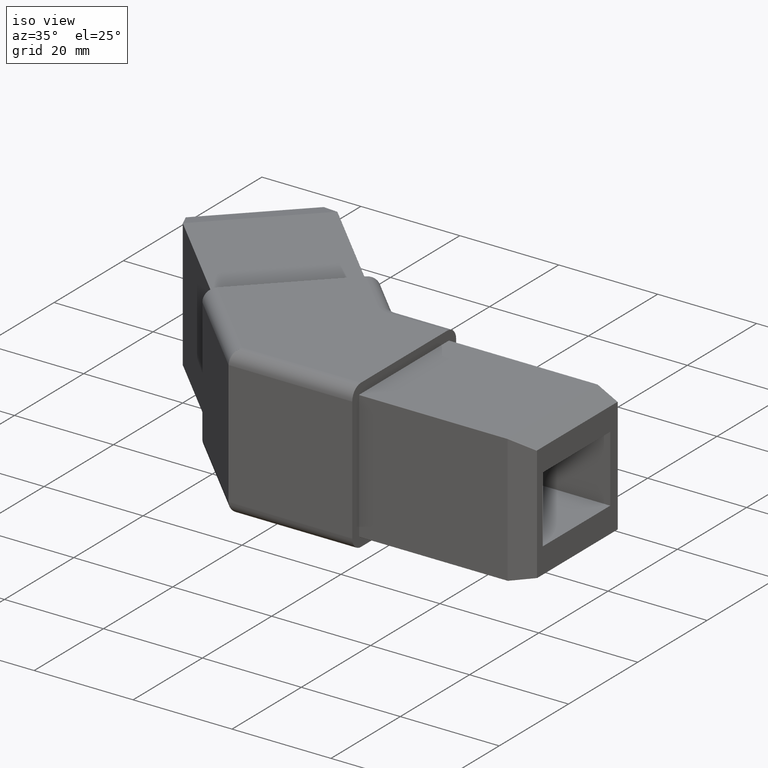
[diagram: clean part render]
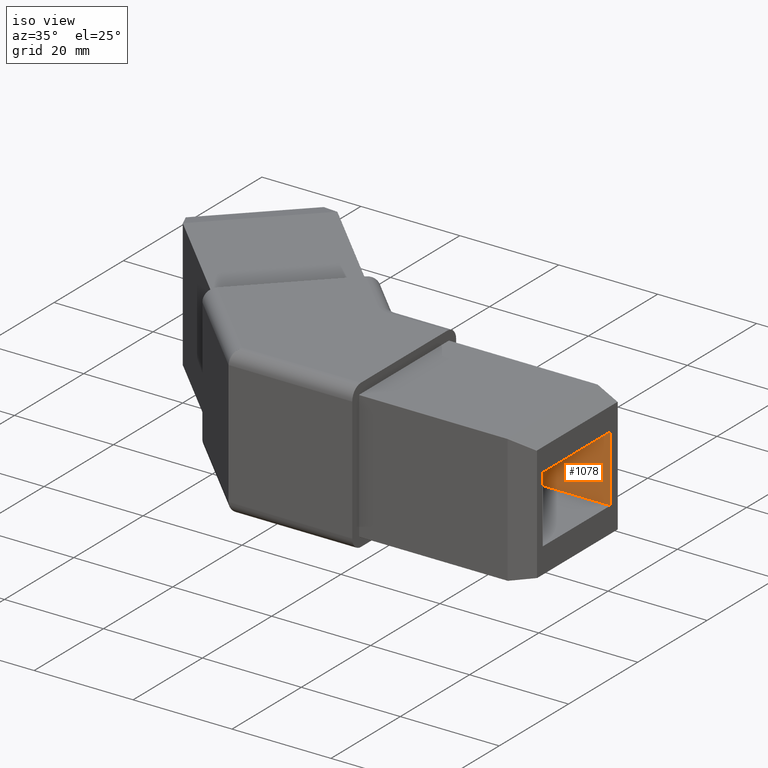
[diagram: same view with one face highlighted and labeled with its STEP entity id]
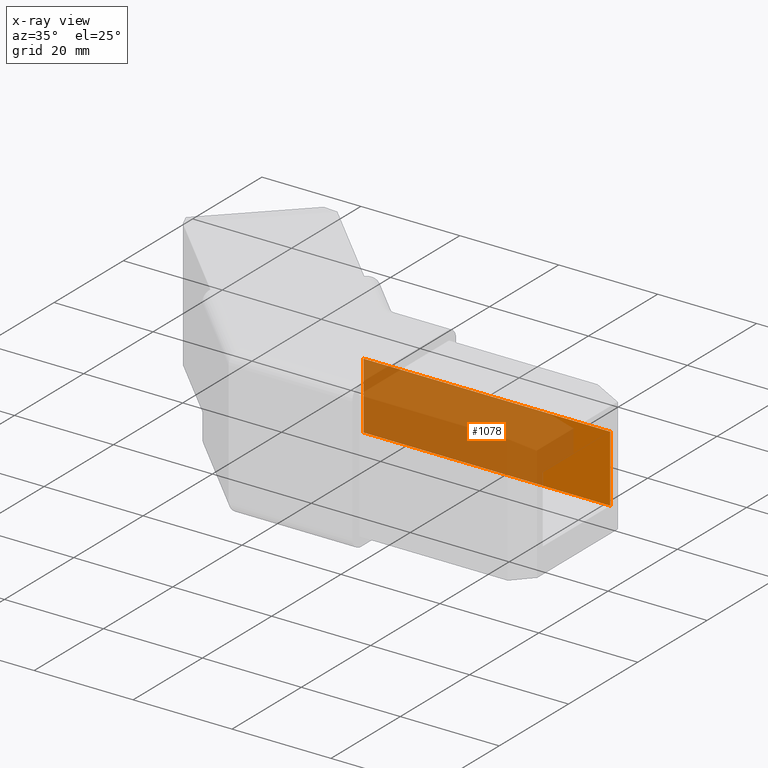
[diagram: x-ray of the same camera — body ghosted, the highlighted face saturated]
A machine part, iso view. The second image highlights one B-rep face of the part: STEP entity #1078.
The next image is the same camera in x-ray: the body ghosted, the highlighted face saturated — about 80% of this face is hidden behind the body in this view.
In plain terms, the highlighted planar face has unit normal (0, 1, 0).
Its self-contained STEP definition (entity closure, byte-faithful):
#116=FACE_OUTER_BOUND('',#178,.T.);
#178=EDGE_LOOP('',(#737,#738,#739,#740));
#246=LINE('',#1643,#348);
#249=LINE('',#1649,#351);
#252=LINE('',#1654,#354);
#256=LINE('',#1661,#358);
#348=VECTOR('',#1290,10.);
#351=VECTOR('',#1295,10.);
#354=VECTOR('',#1300,10.);
#358=VECTOR('',#1308,10.);
#449=VERTEX_POINT('',#1640);
#450=VERTEX_POINT('',#1642);
#452=VERTEX_POINT('',#1648);
#453=VERTEX_POINT('',#1653);
#556=EDGE_CURVE('',#449,#450,#246,.T.);
#559=EDGE_CURVE('',#450,#452,#249,.T.);
#562=EDGE_CURVE('',#453,#452,#252,.T.);
#566=EDGE_CURVE('',#453,#449,#256,.T.);
#737=ORIENTED_EDGE('',*,*,#566,.F.);
#738=ORIENTED_EDGE('',*,*,#562,.T.);
#739=ORIENTED_EDGE('',*,*,#559,.F.);
#740=ORIENTED_EDGE('',*,*,#556,.F.);
#1046=PLANE('',#1160);
#1078=ADVANCED_FACE('',(#116),#1046,.F.);
#1160=AXIS2_PLACEMENT_3D('',#1660,#1306,#1307);
#1290=DIRECTION('',(-1.,0.,0.));
#1295=DIRECTION('',(6.62774071755071E-17,0.,1.));
#1300=DIRECTION('',(-1.,0.,0.));
#1306=DIRECTION('center_axis',(0.,1.,0.));
#1307=DIRECTION('ref_axis',(0.,0.,1.));
#1308=DIRECTION('',(0.,0.,-1.));
#1640=CARTESIAN_POINT('',(53.787,9.5,8.49999999999999));
#1642=CARTESIAN_POINT('',(3.93502884254441,9.5,8.49999999999999));
#1643=CARTESIAN_POINT('',(18.787,9.5,8.49999999999999));
#1648=CARTESIAN_POINT('',(3.93502884254441,9.5,22.));
#1649=CARTESIAN_POINT('',(3.93502884254441,9.5,18.625));
#1653=CARTESIAN_POINT('',(53.787,9.5,22.));
#1654=CARTESIAN_POINT('',(18.787,9.5,22.));
#1660=CARTESIAN_POINT('Origin',(18.787,9.5,8.49999999999999));
#1661=CARTESIAN_POINT('',(53.787,9.5,11.75));